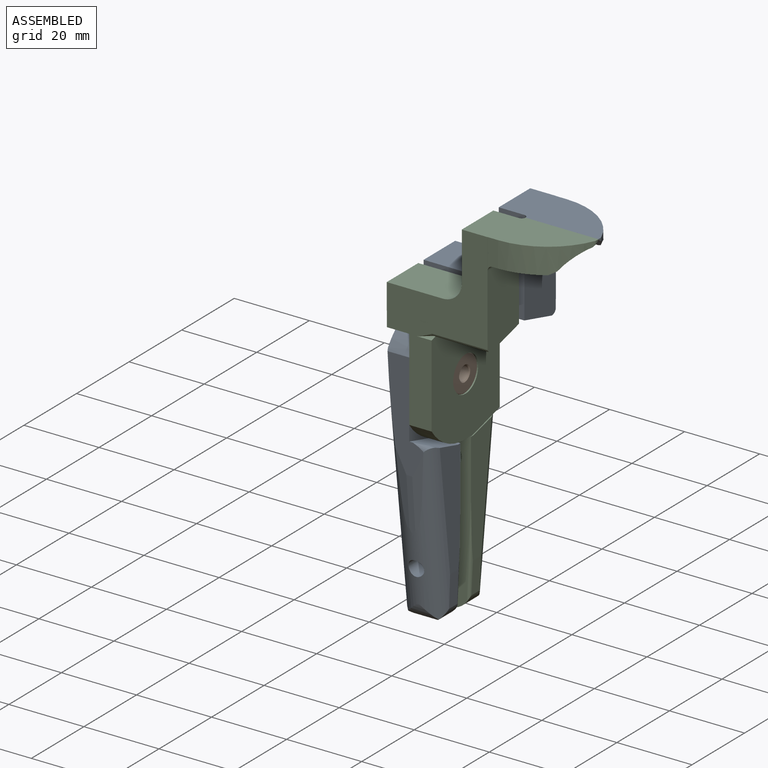
[diagram: assembled view]
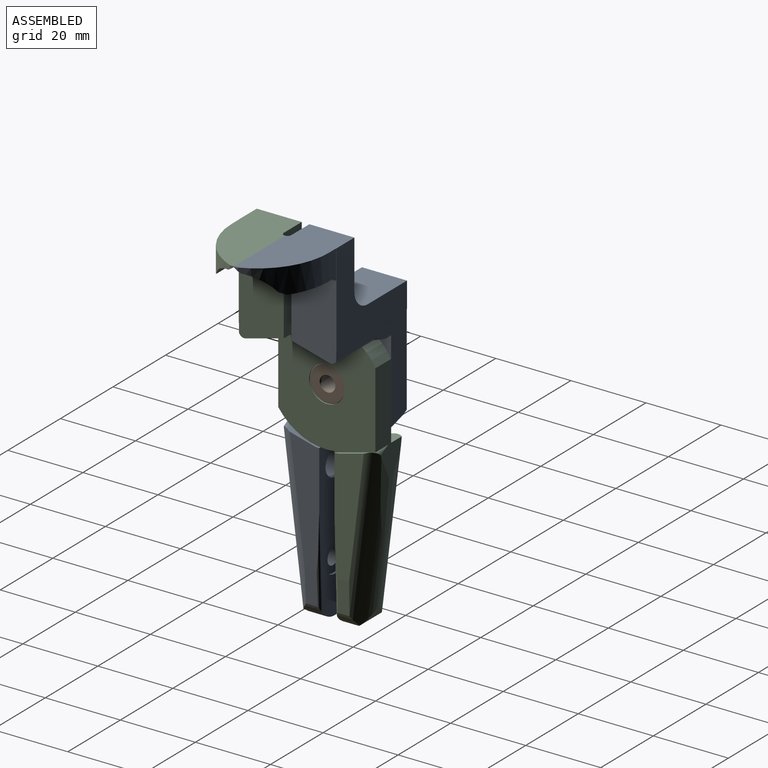
[diagram: assembled view, second angle]
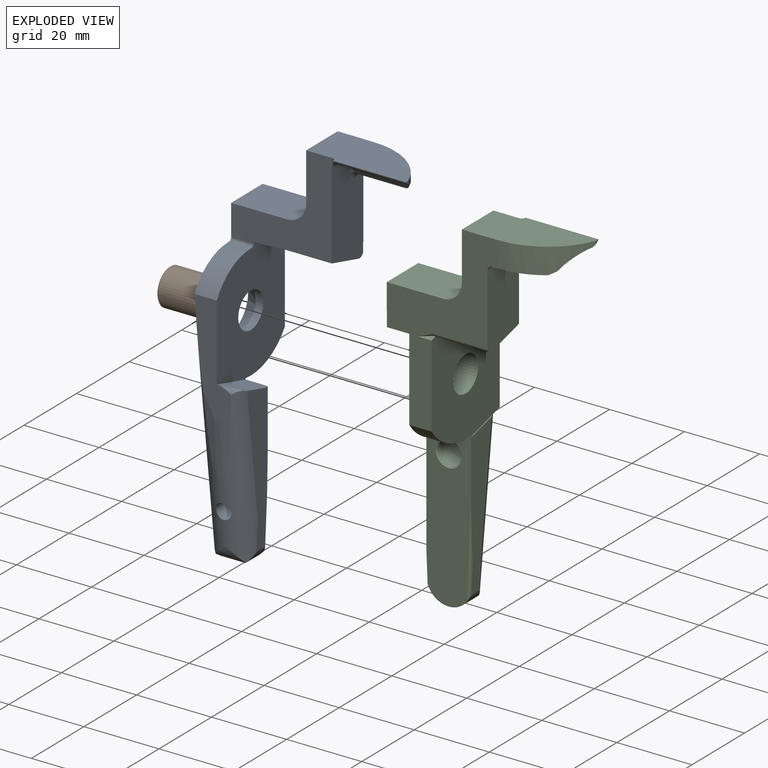
[diagram: exploded view]
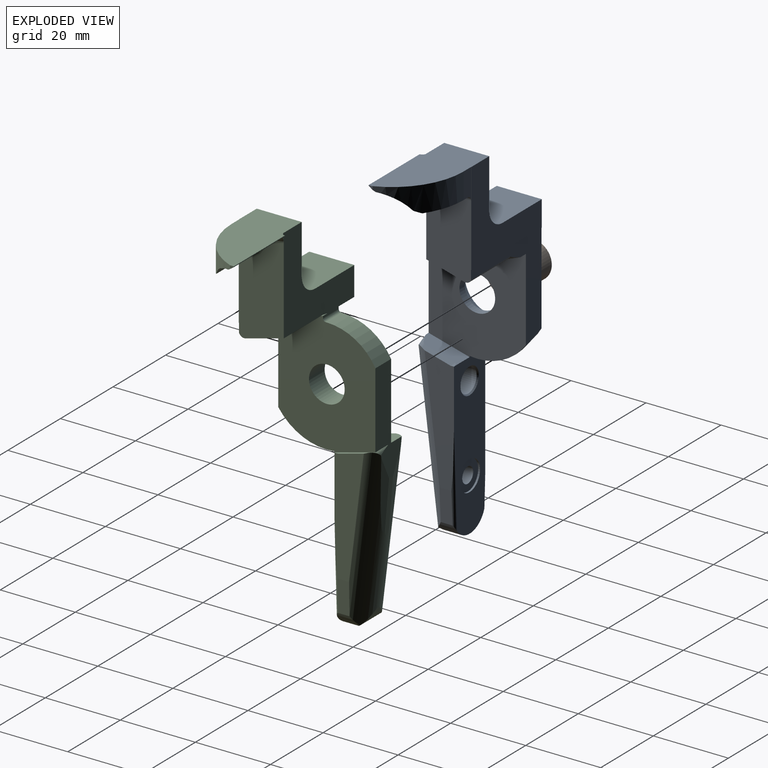
[diagram: exploded view, second angle]
ASSEMBLY  parts=3 mates=2
PART A: 68 faces, bbox 47.8x31.2x100.5 mm
  f0: plane 28.21x12mm, normal (1,0,0), area 254mm2, adj f3,f9,f12,f14,f17,f18,f19,f20
  f1: plane 19.44x0.23mm, normal (0,-1,0), area 3.6mm2, adj f2,f8,f16,f66,f67
  f2: plane 20.46x12.98mm, normal (0,0,1), area 206mm2, adj f1,f8,f12,f17,f61,f67
  f3: plane 26.83x26.26mm, normal (0,-1,0), area 334.4mm2, adj f0,f10,f11,f12,f13,f15,f19,f38
  f4: plane 19.18x0.65mm, normal (0,-0.57,-0.82), area 15.1mm2, adj f5,f16,f61,f65
  f5: cylinder r=9.42mm len=18.9mm, axis (-1,0,0), area 137mm2, adj f4,f6,f61,f64
  f6: plane 14.06x1.31mm, normal (0,-0.58,-0.82), area 20.7mm2, adj f5,f7,f61,f63
  f7: plane 12.39x3.42mm, normal (0,0,-1), area 30.5mm2, adj f6,f17,f61,f62
  f8: plane 1.02x0.9mm, normal (1,0,0), area 0.5mm2, adj f1,f2,f16,f61
  f9: plane 26.83x0.06mm, normal (0,0,-1), area 1.7mm2, adj f0,f11,f14,f18
  f10: plane 14.92x12mm, normal (0,0,1), area 179mm2, adj f3,f11,f14,f15
  f11: plane 69.93x25.57mm, normal (-1,0,0), area 782.9mm2, adj f3,f9,f10,f14,f18,f22,f23,f41
  f12: plane 12.01x6.84mm, normal (0,0,1), area 82mm2, adj f0,f2,f3,f13,f14
  f13: plane 12.92x12mm, normal (-1,0,0), area 155mm2, adj f3,f12,f14,f15
  f14: plane 26.83x24.83mm, normal (0,1,0), area 311.9mm2, adj f0,f9,f10,f11,f12,f13,f15
  f15: cylinder r=5.08mm len=12mm, axis (0,1,0), area 95.8mm2, adj f3,f10,f13,f14
  f16: plane 19.18x1.02mm, normal (0,-0.57,-0.82), area 23.8mm2, adj f1,f4,f8,f66
  f17: plane 8.14x2.77mm, normal (0,1,0), area 19.4mm2, adj f0,f2,f7,f61,f62
  f18: plane 26.83x26.01mm, normal (0,1,0), area 208.1mm2, adj f0,f9,f11,f21,f22,f27,f52,f53
  f19: plane 14.92x10.16mm, normal (0,-0.26,-0.97), area 156.9mm2, adj f0,f3,f20,f40
  f20: cylinder r=1.91mm len=14.92mm, axis (-1,0,0), area 5mm2, adj f0,f19,f21,f39
  f21: extruded ~14.92x1.45mm, area 27.7mm2, adj f0,f18,f20,f55
  f22: torus R=14.09mm, axis (1,0,0), area 0.5mm2, adj f11,f18,f52,f60
  f23: cone r=7.52mm half-angle=35deg, axis (-1,0,0), area 185.5mm2, adj f11,f24
  f24: cylinder r=4.76mm len=9.53mm, axis (1,0,0), area 60.4mm2, adj f23,f53
  f25: cylinder r=2.08mm len=7.71mm, axis (0,-1,0), area 100.9mm2, adj f34,f57
  f26: cylinder r=1.52mm len=5.03mm, axis (-0.96,-0.19,0.23), area 4.9mm2, adj f32,f37,f49,f57
  f27: cylinder r=15.75mm len=14.99mm, axis (1,0,0), area 13.1mm2, adj f18,f51,f52,f53
  f28: cylinder r=3.96mm len=7.93mm, axis (0,-1,0), area 12.6mm2, adj f34,f51
  f29: cone r=3.49mm half-angle=41deg, axis (0,1,0), area 10.1mm2, adj f30,f51
  f30: cylinder r=3.17mm len=6.35mm, axis (0,-1,0), area 94.1mm2, adj f29,f31
  f31: cone r=3.17mm half-angle=59deg, axis (0,1,0), area 36.9mm2, adj f30
  f32: plane 8.3x2.44mm, normal (0.17,0.25,0.95), area 13.3mm2, adj f26,f33,f37,f45,f57
  f33: plane 1.6x0.92mm, normal (0.13,0,0.99), area 0.8mm2, adj f32,f37,f45,f51
  f34: plane 7.93x7.92mm, normal (0,1,0), area 35.7mm2, adj f25,f28
  f35: plane 0.17x0.02mm, normal (0,0,-1), area 0mm2, adj f36,f45,f51
  f36: cylinder r=0.76mm len=24.31mm, axis (-0.04,0,-1), area 18.5mm2, adj f35,f44,f45,f50,f51
  f37: plane 11.07x5.76mm, normal (0,0.26,0.97), area 47mm2, adj f26,f32,f33,f49,f51,f53
  f38: plane 10.43x3.08mm, normal (0.17,-0.25,-0.95), area 16.8mm2, adj f3,f40,f54,f55
  f39: cylinder r=1.45mm len=0.34mm, axis (-0.9,0.35,-0.26), area 0mm2, adj f20,f40,f55
  f40: cylinder r=0.76mm len=10.16mm, axis (0,0.97,-0.26), area 0.4mm2, adj f3,f19,f38,f39
  f41: cylinder r=0.76mm len=5.96mm, axis (-1,0,0), area 7.1mm2, adj f3,f11,f42,f53
  f42: plane 5.96x0.25mm, normal (0,0,1), area 1.5mm2, adj f11,f41,f53,f56
  f43: cylinder r=6.35mm len=8.18mm, axis (-1,0,0), area 37.3mm2, adj f50,f57
  f44: plane 8.43x3.18mm, normal (1,0,-0.04), area 26.3mm2, adj f36,f45,f50,f57
  f45: plane 31.96x7.82mm, normal (1,0,0), area 176.1mm2, adj f32,f33,f35,f36,f44,f51,f57
  f46: plane 19.31x2.97mm, normal (0.17,-0.98,-0.09), area 32.6mm2, adj f47,f49,f57
  f47: plane 14.39x1.52mm, normal (0,-1,-0.09), area 21.3mm2, adj f46,f48,f49,f57
  f48: plane 19.31x2.97mm, normal (-0.17,-0.98,-0.09), area 32.6mm2, adj f47,f49,f57
  f49: plane 28.46x9.61mm, normal (0,-1,0), area 144.9mm2, adj f26,f37,f46,f47,f48,f53,f56,f57
  f50: cylinder r=5.96mm len=11.21mm, axis (0,1,0), area 55.9mm2, adj f36,f43,f44,f51,f57,f58
  f51: plane 43.7x11.75mm, normal (0,1,0), area 386mm2, adj f27,f28,f29,f33,f35,f36,f37,f45
  f52: cone r=15.75mm half-angle=10deg, axis (1,0,0), area 91.7mm2, adj f18,f22,f27,f51,f59,f60
  f53: plane 32.05x25.91mm, normal (1,0,0), area 649.1mm2, adj f3,f18,f24,f27,f37,f41,f42,f49
  f54: plane 11.94x4.37mm, normal (0,-0.26,-0.97), area 52.7mm2, adj f3,f18,f38,f53,f55
  f55: cylinder r=1.52mm len=4.16mm, axis (-0.96,0.17,-0.22), area 4.7mm2, adj f18,f21,f38,f39,f54
  f56: cylinder r=14.86mm len=12.95mm, axis (-1,0,0), area 93.7mm2, adj f11,f42,f49,f53,f57
  f57: cylinder r=6.21mm len=64.93mm, axis (0,0.12,-0.99), area 554.4mm2, adj f11,f25,f26,f32,f43,f44,f45,f46
  f58: plane 8.46x3.96mm, normal (-1,0,-0.04), area 32.7mm2, adj f11,f50,f51,f57,f59
  f59: cylinder r=0.76mm len=35.32mm, axis (0,0,1), area 5.5mm2, adj f11,f51,f52,f58,f60
  f60: torus R=14.09mm, axis (1,0,0), area 0.1mm2, adj f11,f22,f52,f59
  f61: cylinder r=19.05mm len=17.68mm, axis (0,0,1), area 118.8mm2, adj f2,f4,f5,f6,f7,f8,f17
  f62: cylinder r=1.27mm len=3.82mm, axis (0,1,0), area 7.2mm2, adj f0,f7,f17,f63
  f63: cylinder r=1.27mm len=2.58mm, axis (0,0.82,-0.58), area 3.8mm2, adj f0,f6,f62,f64
  f64: bspline ~7.24x5.53mm, area 16.4mm2, adj f0,f5,f63,f65
  f65: cylinder r=1.27mm len=1.66mm, axis (0,0.82,-0.57), area 1.3mm2, adj f0,f4,f64,f66,f67
  f66: cylinder r=1.27mm len=1.16mm, axis (0,-0.82,0.57), area 0.5mm2, adj f1,f16,f65,f67
  f67: cylinder r=1.02mm len=2.45mm, axis (0,0,1), area 1.5mm2, adj f1,f2,f3,f65,f66
PART B: 8 faces, bbox 9.8x11.4x9.8 mm
  f0: cylinder r=1.84mm len=10.92mm, axis (0,1,0), area 126.4mm2, adj f6,f7
  f1: cylinder r=4.89mm len=10.92mm, axis (0,1,0), area 335.5mm2, adj f4,f5
  f2: plane 9.27x9.27mm, normal (0,-1,0), area 53.7mm2, adj f5,f6
  f3: plane 9.27x9.27mm, normal (0,1,0), area 53.7mm2, adj f4,f7
  f4: cone r=4.89mm half-angle=45deg, axis (0,-1,0), area 10.7mm2, adj f1,f3
  f5: cone r=4.64mm half-angle=45deg, axis (0,1,0), area 10.7mm2, adj f1,f2
  f6: cone r=1.84mm half-angle=45deg, axis (0,-1,0), area 4.4mm2, adj f0,f2
  f7: cone r=2.1mm half-angle=45deg, axis (0,1,0), area 4.4mm2, adj f0,f3
PART C: 65 faces, bbox 47.4x28.2x100.4 mm
  f0: plane 20.46x12.98mm, normal (0,0,1), area 206mm2, adj f15,f20,f24,f26,f52,f64
  f1: plane 26.83x26.26mm, normal (0,1,0), area 334.1mm2, adj f4,f5,f17,f18,f20,f21,f23,f27
  f2: plane 26.83x26.01mm, normal (0,-1,0), area 212.3mm2, adj f3,f4,f16,f17,f29,f48,f54,f55
  f3: cylinder r=15.75mm len=14.99mm, axis (1,0,0), area 102.7mm2, adj f2,f8,f55,f56
  f4: plane 12x10.88mm, normal (-1,0,0), area 111.2mm2, adj f1,f2,f16,f18,f22,f58
  f5: cylinder r=0.76mm len=5.96mm, axis (-1,0,0), area 7.1mm2, adj f1,f6,f55,f56
  f6: plane 5.96x0.25mm, normal (0,0,1), area 1.5mm2, adj f5,f9,f55,f56
  f7: plane 28.51x10.07mm, normal (0,1,0), area 162.8mm2, adj f9,f30,f44,f45,f46,f49,f53,f55
  f8: plane 42.8x11.75mm, normal (0,-1,0), area 433.4mm2, adj f3,f31,f35,f36,f37,f43,f47,f50
  f9: cylinder r=14.86mm len=12.95mm, axis (-1,0,0), area 93.7mm2, adj f6,f7,f55,f56
  f10: cylinder r=4.76mm len=9.53mm, axis (1,0,0), area 178.2mm2, adj f55,f56
  f11: plane 19.18x0.65mm, normal (0,0.57,-0.82), area 15.1mm2, adj f12,f25,f52,f62
  f12: cylinder r=9.42mm len=18.9mm, axis (-1,0,0), area 137mm2, adj f11,f13,f52,f61
  f13: plane 14.06x1.31mm, normal (0,0.58,-0.82), area 20.7mm2, adj f12,f14,f52,f60
  f14: plane 12.39x3.42mm, normal (0,0,-1), area 30.5mm2, adj f13,f26,f52,f59
  f15: plane 1.02x0.9mm, normal (1,0,0), area 0.5mm2, adj f0,f24,f25,f52
  f16: plane 26.83x0.06mm, normal (0,0,-1), area 1.7mm2, adj f2,f4,f17,f22
  f17: plane 28.21x12mm, normal (1,0,0), area 254mm2, adj f1,f2,f16,f20,f22,f26,f27,f28
  f18: plane 14.92x12mm, normal (0,0,1), area 179mm2, adj f1,f4,f22,f23
  f19: plane 32.3x7.84mm, normal (-1,0,0), area 181.1mm2, adj f49,f50,f51,f57
  f20: plane 12.01x6.84mm, normal (0,0,1), area 82mm2, adj f0,f1,f17,f21,f22
  f21: plane 12.92x12mm, normal (-1,0,0), area 155mm2, adj f1,f20,f22,f23
  f22: plane 26.83x24.83mm, normal (0,-1,0), area 311.9mm2, adj f4,f16,f17,f18,f20,f21,f23
  f23: cylinder r=5.08mm len=12mm, axis (0,-1,0), area 95.8mm2, adj f1,f18,f21,f22
  f24: plane 19.44x0.23mm, normal (0,1,0), area 3.6mm2, adj f0,f15,f25,f63,f64
  f25: plane 19.18x1.02mm, normal (0,0.57,-0.82), area 23.8mm2, adj f11,f15,f24,f63
  f26: plane 8.14x2.77mm, normal (0,-1,0), area 19.4mm2, adj f0,f14,f17,f52,f59
  f27: plane 14.92x10.16mm, normal (0,0.26,-0.97), area 156.9mm2, adj f1,f17,f28,f40
  f28: cylinder r=1.91mm len=14.92mm, axis (-1,0,0), area 5mm2, adj f17,f27,f29,f39
  f29: extruded ~14.92x1.45mm, area 27.7mm2, adj f2,f17,f28,f48
  f30: cylinder r=1.52mm len=5.03mm, axis (-0.96,0.19,0.23), area 4.9mm2, adj f7,f34,f49,f53
  f31: cone r=3.49mm half-angle=41deg, axis (0,-1,0), area 10.1mm2, adj f8,f32
  f32: cylinder r=3.17mm len=6.35mm, axis (0,1,0), area 94.1mm2, adj f31,f33
  f33: cone r=3.17mm half-angle=59deg, axis (0,-1,0), area 36.9mm2, adj f32
  f34: plane 8.3x2.44mm, normal (0.17,-0.25,0.95), area 13.3mm2, adj f30,f35,f43,f49,f53
  f35: plane 1.6x0.92mm, normal (0.13,0,0.99), area 0.8mm2, adj f8,f34,f43,f53
  f36: plane 0.17x0.02mm, normal (0,0,-1), area 0mm2, adj f8,f37,f43
  f37: cylinder r=0.76mm len=24.31mm, axis (-0.04,0,-1), area 18.5mm2, adj f8,f36,f42,f43,f47
  f38: plane 10.43x3.08mm, normal (0.17,0.25,-0.95), area 16.8mm2, adj f1,f40,f48,f54
  f39: cylinder r=1.45mm len=0.34mm, axis (-0.9,-0.35,-0.26), area 0mm2, adj f28,f40,f48
  f40: cylinder r=0.76mm len=10.16mm, axis (0,-0.97,-0.26), area 0.4mm2, adj f1,f27,f38,f39
  f41: cylinder r=6.35mm len=8.18mm, axis (-1,0,0), area 37.6mm2, adj f47,f49
  f42: plane 8.43x3.18mm, normal (1,0,-0.04), area 26.3mm2, adj f37,f43,f47,f49
  f43: plane 31.96x7.82mm, normal (1,0,0), area 176.1mm2, adj f8,f34,f35,f36,f37,f42,f49
  f44: plane 19.31x2.97mm, normal (0.17,0.98,-0.09), area 32.6mm2, adj f7,f45,f49
  f45: plane 14.39x1.52mm, normal (0,1,-0.09), area 21.3mm2, adj f7,f44,f46,f49
  f46: plane 19.31x2.97mm, normal (-0.17,0.98,-0.09), area 32.6mm2, adj f7,f45,f49
  f47: cylinder r=5.96mm len=11.21mm, axis (0,-1,0), area 55.9mm2, adj f8,f37,f41,f42,f49,f50
  f48: cylinder r=1.52mm len=4.16mm, axis (-0.96,-0.17,-0.22), area 4.7mm2, adj f2,f29,f38,f39,f54
  f49: cylinder r=6.21mm len=44.41mm, axis (0,-0.12,-0.99), area 527.2mm2, adj f7,f19,f30,f34,f41,f42,f43,f44
  f50: plane 8.46x3.96mm, normal (-1,0,-0.04), area 32.7mm2, adj f8,f19,f47,f49,f51
  f51: cylinder r=0.76mm len=34.17mm, axis (0,0,1), area 5.4mm2, adj f8,f19,f50,f57
  f52: cylinder r=19.05mm len=17.68mm, axis (0,0,1), area 118.8mm2, adj f0,f11,f12,f13,f14,f15,f26
  f53: plane 10.92x4.96mm, normal (0,0.26,-0.97), area 20.3mm2, adj f7,f8,f30,f34,f35,f55
  f54: plane 11.94x3.88mm, normal (0,-0.26,0.97), area 21mm2, adj f1,f2,f38,f48,f55
  f55: plane 32.05x25.91mm, normal (1,0,0), area 649.1mm2, adj f1,f2,f3,f5,f6,f7,f8,f9
  f56: plane 32.05x25.91mm, normal (-1,0,0), area 649.2mm2, adj f1,f2,f3,f5,f6,f7,f8,f9
  f57: plane 11.03x6.07mm, normal (0,-0.26,0.97), area 65mm2, adj f7,f8,f19,f49,f51,f56
  f58: plane 11.94x5.96mm, normal (0,0.26,-0.97), area 73.6mm2, adj f1,f2,f4,f56
  f59: cylinder r=1.27mm len=3.82mm, axis (0,-1,0), area 7.2mm2, adj f14,f17,f26,f60
  f60: cylinder r=1.27mm len=2.58mm, axis (0,-0.82,-0.58), area 3.8mm2, adj f13,f17,f59,f61
  f61: bspline ~7.24x5.53mm, area 16.4mm2, adj f12,f17,f60,f62
  f62: cylinder r=1.27mm len=1.66mm, axis (0,-0.82,-0.57), area 1.3mm2, adj f11,f17,f61,f63,f64
  f63: cylinder r=1.27mm len=1.16mm, axis (0,0.82,0.57), area 0.5mm2, adj f24,f25,f62,f64
  f64: cylinder r=1.02mm len=2.45mm, axis (0,0,1), area 1.5mm2, adj f0,f1,f24,f62,f63
PLACE A t=(-68.24,71.41,55.21)mm
PLACE B rot(axis=(0,0,-1),90deg) t=(-68.25,71.41,55.21)mm
PLACE C t=(-68.24,71.41,55.21)mm
MATE fastened B.f1 <-> C.f10  axis (1,0,0) through (-62.54,71.41,55.21)mm
MATE fastened C.f10 <-> A.f60  axis (-1,0,0) through (-68.24,71.41,55.21)mm
